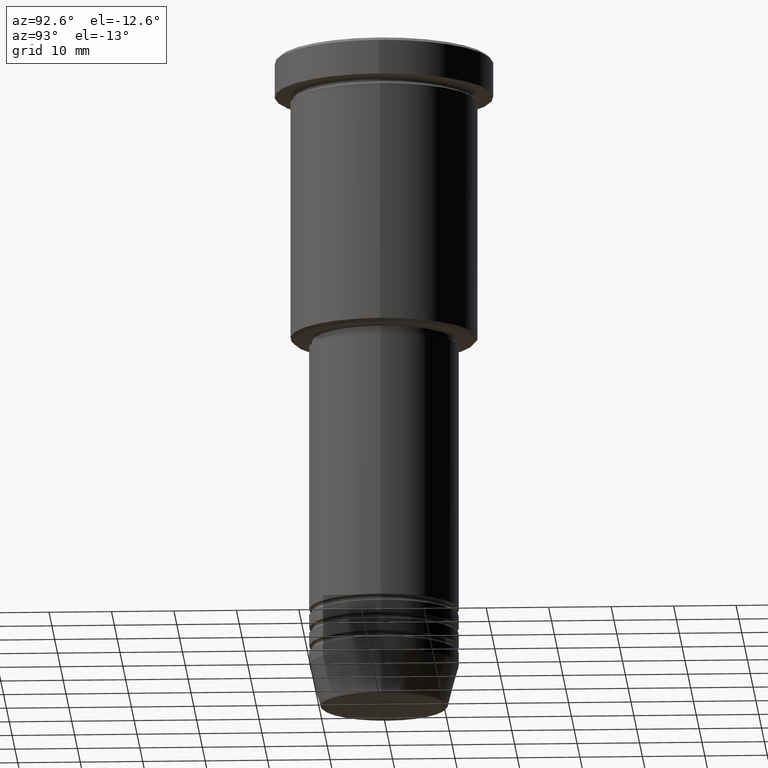
[diagram: clean part render]
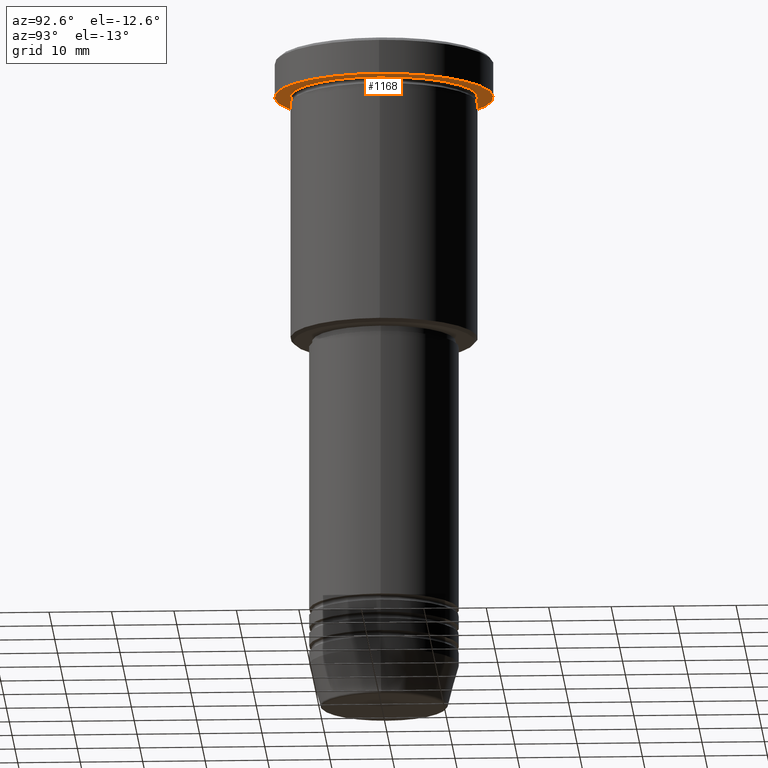
[diagram: same view with one face highlighted and labeled with its STEP entity id]
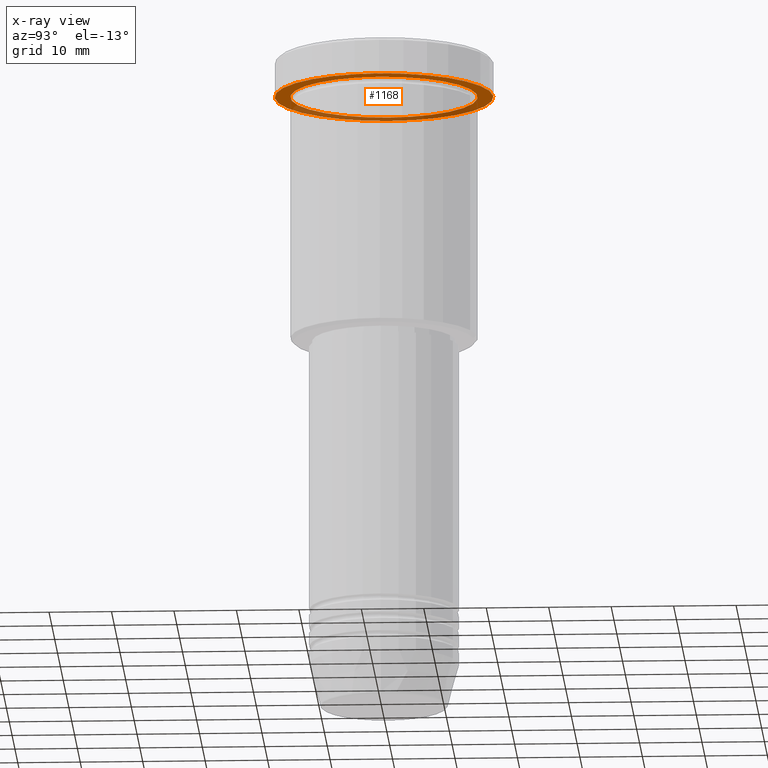
[diagram: x-ray of the same camera — body ghosted, the highlighted face saturated]
A machine part, auxiliary view. The second image highlights one B-rep face of the part: STEP entity #1168.
The next image is the same camera in x-ray: the body ghosted, the highlighted face saturated — about 35% of this face is hidden behind the body in this view.
In plain terms, the highlighted planar face has unit normal (0, 0, -1).
Its self-contained STEP definition (entity closure, byte-faithful):
#1 = EDGE_CURVE ( 'NONE', #677, #590, #1036, .T. ) ;
#24 = ORIENTED_EDGE ( 'NONE', *, *, #1, .F. ) ;
#114 = EDGE_CURVE ( 'NONE', #590, #677, #818, .T. ) ;
#149 = CARTESIAN_POINT ( 'NONE',  ( 0.000000000000000000, 17.50000000000000000, -5.999999999999995559 ) ) ;
#210 = EDGE_LOOP ( 'NONE', ( #302, #258 ) ) ;
#232 = CARTESIAN_POINT ( 'NONE',  ( 0.000000000000000000, 0.000000000000000000, -5.999999999999995559 ) ) ;
#248 = DIRECTION ( 'NONE',  ( -0.000000000000000000, -0.000000000000000000, 1.000000000000000000 ) ) ;
#252 = DIRECTION ( 'NONE',  ( -0.000000000000000000, -0.000000000000000000, 1.000000000000000000 ) ) ;
#258 = ORIENTED_EDGE ( 'NONE', *, *, #689, .T. ) ;
#263 = DIRECTION ( 'NONE',  ( -1.000000000000000000, 0.000000000000000000, 0.000000000000000000 ) ) ;
#291 = VERTEX_POINT ( 'NONE', #472 ) ;
#302 = ORIENTED_EDGE ( 'NONE', *, *, #553, .T. ) ;
#316 = CARTESIAN_POINT ( 'NONE',  ( 17.50000000000000000, 0.000000000000000000, -5.999999999999995559 ) ) ;
#320 = DIRECTION ( 'NONE',  ( -0.000000000000000000, -0.000000000000000000, 1.000000000000000000 ) ) ;
#386 = AXIS2_PLACEMENT_3D ( 'NONE', #149, #412, #788 ) ;
#408 = DIRECTION ( 'NONE',  ( -0.000000000000000000, -0.000000000000000000, 1.000000000000000000 ) ) ;
#412 = DIRECTION ( 'NONE',  ( 0.000000000000000000, 0.000000000000000000, -1.000000000000000000 ) ) ;
#447 = CARTESIAN_POINT ( 'NONE',  ( 0.000000000000000000, 0.000000000000000000, -5.999999999999995559 ) ) ;
#472 = CARTESIAN_POINT ( 'NONE',  ( -15.00000000000000000, 0.000000000000000000, -5.999999999999994671 ) ) ;
#483 = CIRCLE ( 'NONE', #1134, 15.00000000000000000 ) ;
#519 = CARTESIAN_POINT ( 'NONE',  ( 0.000000000000000000, 0.000000000000000000, -5.999999999999995559 ) ) ;
#532 = AXIS2_PLACEMENT_3D ( 'NONE', #232, #408, #1028 ) ;
#541 = FACE_OUTER_BOUND ( 'NONE', #1136, .T. ) ;
#553 = EDGE_CURVE ( 'NONE', #291, #645, #821, .T. ) ;
#590 = VERTEX_POINT ( 'NONE', #316 ) ;
#645 = VERTEX_POINT ( 'NONE', #938 ) ;
#677 = VERTEX_POINT ( 'NONE', #909 ) ;
#689 = EDGE_CURVE ( 'NONE', #645, #291, #483, .T. ) ;
#697 = DIRECTION ( 'NONE',  ( 1.000000000000000000, 0.000000000000000000, 0.000000000000000000 ) ) ;
#750 = AXIS2_PLACEMENT_3D ( 'NONE', #790, #320, #697 ) ;
#788 = DIRECTION ( 'NONE',  ( -1.000000000000000000, 0.000000000000000000, -0.000000000000000000 ) ) ;
#790 = CARTESIAN_POINT ( 'NONE',  ( 0.000000000000000000, 0.000000000000000000, -5.999999999999995559 ) ) ;
#818 = CIRCLE ( 'NONE', #750, 17.50000000000000000 ) ;
#821 = CIRCLE ( 'NONE', #966, 15.00000000000000000 ) ;
#909 = CARTESIAN_POINT ( 'NONE',  ( -17.50000000000000000, 2.143131898507868248E-15, -5.999999999999995559 ) ) ;
#938 = CARTESIAN_POINT ( 'NONE',  ( 15.00000000000000000, 1.836970198721029589E-15, -5.999999999999994671 ) ) ;
#966 = AXIS2_PLACEMENT_3D ( 'NONE', #447, #252, #1086 ) ;
#969 = PLANE ( 'NONE',  #386 ) ;
#989 = FACE_BOUND ( 'NONE', #210, .T. ) ;
#1028 = DIRECTION ( 'NONE',  ( 1.000000000000000000, 0.000000000000000000, 0.000000000000000000 ) ) ;
#1036 = CIRCLE ( 'NONE', #532, 17.50000000000000000 ) ;
#1086 = DIRECTION ( 'NONE',  ( -1.000000000000000000, 0.000000000000000000, 0.000000000000000000 ) ) ;
#1134 = AXIS2_PLACEMENT_3D ( 'NONE', #519, #248, #263 ) ;
#1136 = EDGE_LOOP ( 'NONE', ( #1140, #24 ) ) ;
#1140 = ORIENTED_EDGE ( 'NONE', *, *, #114, .F. ) ;
#1168 = ADVANCED_FACE ( 'NONE', ( #989, #541 ), #969, .T. ) ;